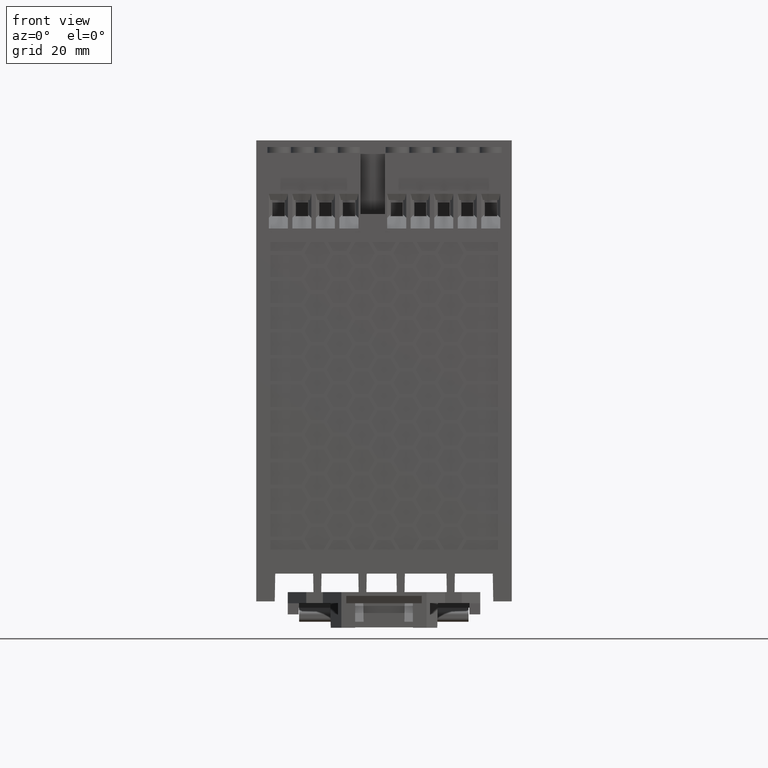
[diagram: clean part render]
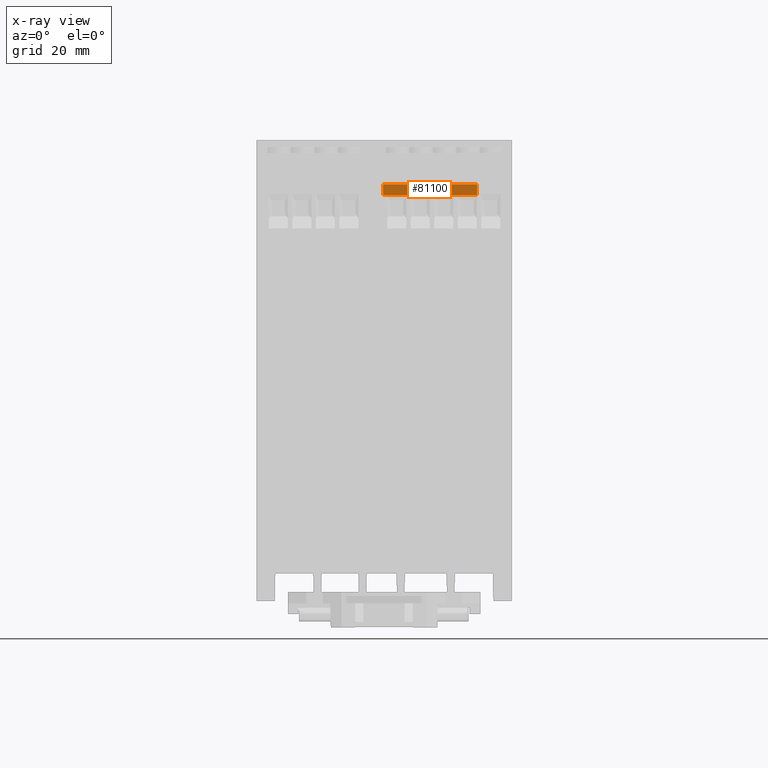
[diagram: x-ray — body ghosted, one internal face saturated and labeled with its STEP entity id]
A machine part, front view, then the same camera in x-ray: the body is ghosted and one INTERNAL B-rep face — a face not visible from any outside direction — is saturated and labeled: STEP entity #81100.
In plain terms, the highlighted planar face has unit normal (-0, 0.9986, -0.0523).
Its self-contained STEP definition (entity closure, byte-faithful):
#60480=CARTESIAN_POINT('',(-62.6950702965998,53.73614651584,
159.9908344212));
#60490=VERTEX_POINT('',#60480);
#60520=CARTESIAN_POINT('',(-62.6950702965998,53.7361465158398,
109.156599293932));
#60530=DIRECTION('',(0.,2.6480396608422E-15,1.));
#60540=VECTOR('',#60530,1.);
#60550=LINE('',#60520,#60540);
#60560=CARTESIAN_POINT('',(-62.6950702965998,53.7361465158399,
134.5908344212));
#60570=VERTEX_POINT('',#60560);
#60580=EDGE_CURVE('',#60570,#60490,#60550,.T.);
#63660=CARTESIAN_POINT('',(-57.640842285076,-42.704269023,134.5908344212
));
#63670=DIRECTION('',(0.0523359562429391,-0.998629534754574,
-7.26307295458567E-18));
#63680=VECTOR('',#63670,1.);
#63690=LINE('',#63660,#63680);
#63700=CARTESIAN_POINT('',(-62.8449347678815,56.5957309769999,
134.5908344212));
#63710=VERTEX_POINT('',#63700);
#63720=EDGE_CURVE('',#63710,#60570,#63690,.T.);
#75060=CARTESIAN_POINT('',(-62.8449347678799,56.5957309769999,
156.8158344212));
#75070=VERTEX_POINT('',#75060);
#75490=CARTESIAN_POINT('',(-62.8449347678815,56.5957309769999,
150.4658344212));
#75500=VERTEX_POINT('',#75490);
#75920=CARTESIAN_POINT('',(-62.8449347678799,56.595730976969,
144.1158344212));
#75930=VERTEX_POINT('',#75920);
#76350=CARTESIAN_POINT('',(-62.8449347678815,56.5957309769999,
137.7658344212));
#76360=VERTEX_POINT('',#76350);
#77000=CARTESIAN_POINT('',(-62.8449347678815,56.5957309769999,
159.9908344212));
#77010=VERTEX_POINT('',#77000);
#77040=CARTESIAN_POINT('',(-57.640842285076,-42.704269023,159.9908344212
));
#77050=DIRECTION('',(-0.0523359562429391,0.998629534754574,
3.79362600263206E-18));
#77060=VECTOR('',#77050,1.);
#77070=LINE('',#77040,#77060);
#77080=EDGE_CURVE('',#60490,#77010,#77070,.T.);
#80390=CARTESIAN_POINT('',(-62.8449347678815,56.5957309769999,
170.0908344212));
#80400=DIRECTION('',(1.38777878078145E-16,3.08148791101958E-32,1.));
#80410=VECTOR('',#80400,1.);
#80420=LINE('',#80390,#80410);
#80430=EDGE_CURVE('',#75070,#77010,#80420,.T.);
#80750=CARTESIAN_POINT('',(-62.5409696480399,50.7957309769999,
153.6408344212));
#80760=DIRECTION('',(-0.998629534754574,-0.0523359562429391,
1.38587687819405E-16));
#80770=DIRECTION('',(0.0523359562429391,-0.998629534754574,
-7.26307295458567E-18));
#80780=AXIS2_PLACEMENT_3D('',#80750,#80760,#80770);
#80790=PLANE('',#80780);
#80800=ORIENTED_EDGE('',*,*,#80430,.T.);
#80810=CARTESIAN_POINT('',(-62.8449347678815,56.5957309769999,
182.7908344212));
#80820=DIRECTION('',(1.38777878078145E-16,3.08148791101958E-32,1.));
#80830=VECTOR('',#80820,1.);
#80840=LINE('',#80810,#80830);
#80850=EDGE_CURVE('',#75500,#75070,#80840,.T.);
#80860=ORIENTED_EDGE('',*,*,#80850,.T.);
#80870=CARTESIAN_POINT('',(-62.8449347678815,56.5957309769999,
176.4408344212));
#80880=DIRECTION('',(1.38777878078145E-16,3.08148791101958E-32,1.));
#80890=VECTOR('',#80880,1.);
#80900=LINE('',#80870,#80890);
#80910=EDGE_CURVE('',#75930,#75500,#80900,.T.);
#80920=ORIENTED_EDGE('',*,*,#80910,.T.);
#80930=CARTESIAN_POINT('',(-62.8449347678815,56.5957309769999,
170.0908344212));
#80940=DIRECTION('',(1.38777878078145E-16,3.08148791101958E-32,1.));
#80950=VECTOR('',#80940,1.);
#80960=LINE('',#80930,#80950);
#80970=EDGE_CURVE('',#76360,#75930,#80960,.T.);
#80980=ORIENTED_EDGE('',*,*,#80970,.T.);
#80990=CARTESIAN_POINT('',(-62.8449347678815,56.5957309769999,
170.0908344212));
#81000=DIRECTION('',(1.38777878078145E-16,3.08148791101958E-32,1.));
#81010=VECTOR('',#81000,1.);
#81020=LINE('',#80990,#81010);
#81030=EDGE_CURVE('',#63710,#76360,#81020,.T.);
#81040=ORIENTED_EDGE('',*,*,#81030,.T.);
#81050=ORIENTED_EDGE('',*,*,#63720,.F.);
#81060=ORIENTED_EDGE('',*,*,#60580,.F.);
#81070=ORIENTED_EDGE('',*,*,#77080,.F.);
#81080=EDGE_LOOP('',(#81070,#81060,#81050,#81040,#80980,#80920,#80860,
#80800));
#81090=FACE_OUTER_BOUND('',#81080,.T.);
#81100=ADVANCED_FACE('',(#81090),#80790,.F.);